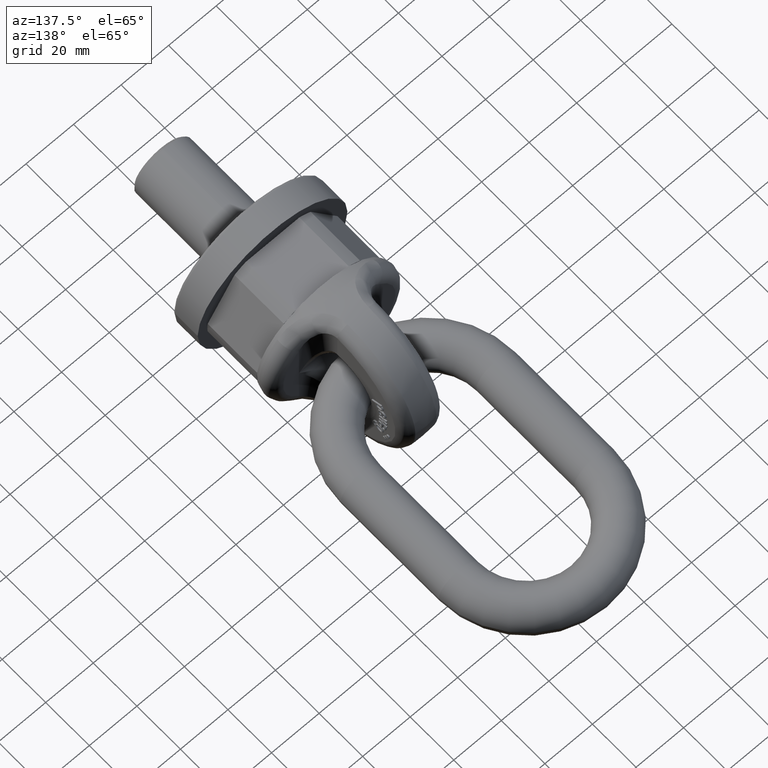
[diagram: clean part render]
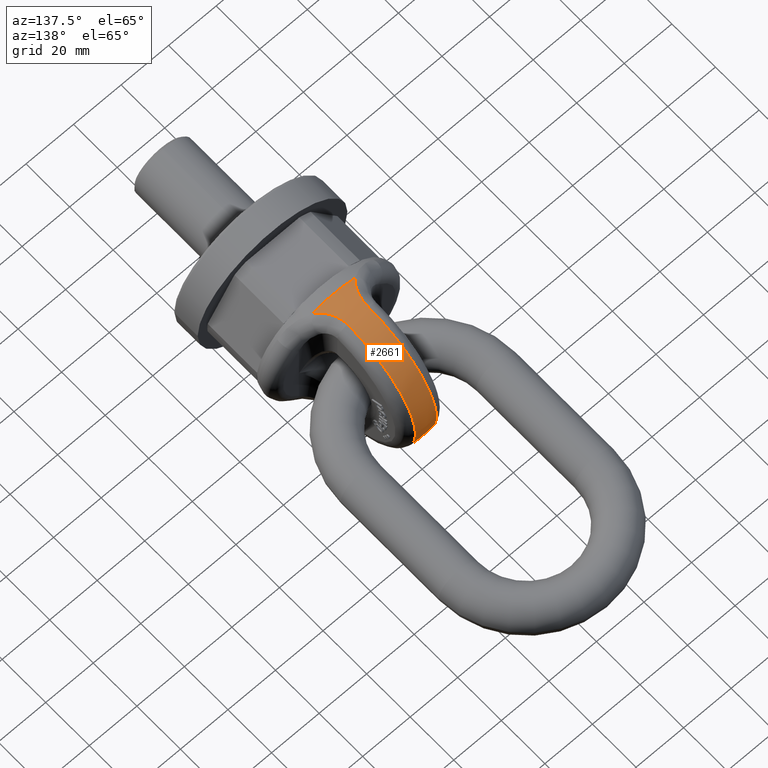
[diagram: same view with one face highlighted and labeled with its STEP entity id]
A machine part, auxiliary view. The second image highlights one B-rep face of the part: STEP entity #2661.
In plain terms, the highlighted spherical surface has radius 31.5 mm.
Its self-contained STEP definition (entity closure, byte-faithful):
#307=SPHERICAL_SURFACE('',#5648,31.5);
#349=B_SPLINE_CURVE_WITH_KNOTS('',3,(#7013,#7014,#7015,#7016,#7017,#7018),
 .UNSPECIFIED.,.F.,.F.,(4,2,4),(0.,0.5,1.),.UNSPECIFIED.);
#350=B_SPLINE_CURVE_WITH_KNOTS('',3,(#7022,#7023,#7024,#7025,#7026,#7027),
 .UNSPECIFIED.,.F.,.F.,(4,2,4),(0.,0.5,1.),.UNSPECIFIED.);
#351=B_SPLINE_CURVE_WITH_KNOTS('',3,(#7031,#7032,#7033,#7034,#7035,#7036),
 .UNSPECIFIED.,.F.,.F.,(4,2,4),(0.,0.5,1.),.UNSPECIFIED.);
#352=B_SPLINE_CURVE_WITH_KNOTS('',3,(#7040,#7041,#7042,#7043,#7044,#7045),
 .UNSPECIFIED.,.F.,.F.,(4,2,4),(0.,0.5,1.),.UNSPECIFIED.);
#1814=FACE_OUTER_BOUND('',#3096,.T.);
#2661=ADVANCED_FACE('',(#1814),#307,.T.);
#3096=EDGE_LOOP('',(#3513,#3514,#3515,#3516,#3517,#3518,#3519,#3520));
#3513=ORIENTED_EDGE('',*,*,#5058,.F.);
#3514=ORIENTED_EDGE('',*,*,#5059,.T.);
#3515=ORIENTED_EDGE('',*,*,#5060,.T.);
#3516=ORIENTED_EDGE('',*,*,#5061,.T.);
#3517=ORIENTED_EDGE('',*,*,#5062,.F.);
#3518=ORIENTED_EDGE('',*,*,#5063,.T.);
#3519=ORIENTED_EDGE('',*,*,#5064,.T.);
#3520=ORIENTED_EDGE('',*,*,#5065,.T.);
#4645=VERTEX_POINT('',#7011);
#4646=VERTEX_POINT('',#7012);
#4647=VERTEX_POINT('',#7019);
#4648=VERTEX_POINT('',#7021);
#4649=VERTEX_POINT('',#7028);
#4650=VERTEX_POINT('',#7030);
#4651=VERTEX_POINT('',#7037);
#4652=VERTEX_POINT('',#7039);
#5058=EDGE_CURVE('',#4645,#4646,#5553,.T.);
#5059=EDGE_CURVE('',#4645,#4647,#349,.T.);
#5060=EDGE_CURVE('',#4647,#4648,#5554,.T.);
#5061=EDGE_CURVE('',#4648,#4649,#350,.T.);
#5062=EDGE_CURVE('',#4650,#4649,#5555,.T.);
#5063=EDGE_CURVE('',#4650,#4651,#351,.T.);
#5064=EDGE_CURVE('',#4651,#4652,#5556,.T.);
#5065=EDGE_CURVE('',#4652,#4646,#352,.T.);
#5553=CIRCLE('',#5644,29.4392221405665);
#5554=CIRCLE('',#5645,31.188939297323);
#5555=CIRCLE('',#5646,29.4392221405665);
#5556=CIRCLE('',#5647,31.188939297323);
#5644=AXIS2_PLACEMENT_3D('',#7010,#5959,#5960);
#5645=AXIS2_PLACEMENT_3D('',#7020,#5961,#5962);
#5646=AXIS2_PLACEMENT_3D('',#7029,#5963,#5964);
#5647=AXIS2_PLACEMENT_3D('',#7038,#5965,#5966);
#5648=AXIS2_PLACEMENT_3D('',#7046,#5967,#5968);
#5959=DIRECTION('',(0.,-1.,0.));
#5960=DIRECTION('',(0.,0.,-1.));
#5961=DIRECTION('',(1.,3.03576608295941E-16,2.34291072916505E-15));
#5962=DIRECTION('',(3.05909060481944E-16,-1.,6.91604647772953E-31));
#5963=DIRECTION('',(0.,-1.,0.));
#5964=DIRECTION('',(0.,0.,-1.));
#5965=DIRECTION('',(-1.,3.03576608295941E-16,0.));
#5966=DIRECTION('',(-3.05909060481944E-16,-1.,0.));
#5967=DIRECTION('',(6.12323399573677E-17,-1.,0.));
#5968=DIRECTION('',(1.,0.,0.));
#7010=CARTESIAN_POINT('',(0.,39.2936535945751,0.));
#7011=CARTESIAN_POINT('',(-9.1621136409193,39.2936535945751,-27.9771956041434));
#7012=CARTESIAN_POINT('',(9.16211364091934,39.2936535945751,-27.9771956041434));
#7013=CARTESIAN_POINT('',(-9.16211364091929,39.2936535945751,-27.9771956041434));
#7014=CARTESIAN_POINT('',(-7.77353507639356,40.638892343862,-28.9707736032879));
#7015=CARTESIAN_POINT('',(-6.56660956113291,42.322812002598,-29.7816653667164));
#7016=CARTESIAN_POINT('',(-4.8875529109417,46.155629305019,-30.8896847911342));
#7017=CARTESIAN_POINT('',(-4.41588785046721,48.3063805036106,-31.188939297323));
#7018=CARTESIAN_POINT('',(-4.41588785046721,50.5,-31.188939297323));
#7019=CARTESIAN_POINT('',(-4.41588785046721,50.5,-31.188939297323));
#7020=CARTESIAN_POINT('',(-4.41588785046729,50.5,-1.03460310236494E-14));
#7021=CARTESIAN_POINT('',(-4.41588785046736,50.5,31.1889392973229));
#7022=CARTESIAN_POINT('',(-4.41588785046736,50.5,31.1889392973229));
#7023=CARTESIAN_POINT('',(-4.41588785046736,48.3041034149694,31.1889392973229));
#7024=CARTESIAN_POINT('',(-4.89286757863872,46.1411705417204,30.886211336712));
#7025=CARTESIAN_POINT('',(-6.5669175223113,42.3244437071946,29.7814283015914));
#7026=CARTESIAN_POINT('',(-7.77394866749056,40.6384916616218,28.9704776639547));
#7027=CARTESIAN_POINT('',(-9.1621136409194,39.2936535945751,27.9771956041434));
#7028=CARTESIAN_POINT('',(-9.1621136409194,39.2936535945751,27.9771956041434));
#7029=CARTESIAN_POINT('',(0.,39.2936535945751,0.));
#7030=CARTESIAN_POINT('',(9.16211364091937,39.2936535945751,27.9771956041434));
#7031=CARTESIAN_POINT('',(9.16211364091936,39.2936535945751,27.9771956041434));
#7032=CARTESIAN_POINT('',(7.77353507639363,40.638892343862,28.9707736032879));
#7033=CARTESIAN_POINT('',(6.56660956113298,42.322812002598,29.7816653667164));
#7034=CARTESIAN_POINT('',(4.88755291094177,46.155629305019,30.8896847911342));
#7035=CARTESIAN_POINT('',(4.41588785046728,48.3063805036106,31.188939297323));
#7036=CARTESIAN_POINT('',(4.41588785046728,50.5,31.188939297323));
#7037=CARTESIAN_POINT('',(4.41588785046729,50.5,31.188939297323));
#7038=CARTESIAN_POINT('',(4.41588785046729,50.5,0.));
#7039=CARTESIAN_POINT('',(4.41588785046729,50.5,-31.188939297323));
#7040=CARTESIAN_POINT('',(4.41588785046728,50.5,-31.188939297323));
#7041=CARTESIAN_POINT('',(4.41588785046728,48.3041034149694,-31.1889392973229));
#7042=CARTESIAN_POINT('',(4.89286757863865,46.1411705417204,-30.886211336712));
#7043=CARTESIAN_POINT('',(6.56691752231123,42.3244437071946,-29.7814283015914));
#7044=CARTESIAN_POINT('',(7.77394866749049,40.6384916616218,-28.9704776639547));
#7045=CARTESIAN_POINT('',(9.16211364091934,39.2936535945751,-27.9771956041434));
#7046=CARTESIAN_POINT('',(0.,50.5,0.));